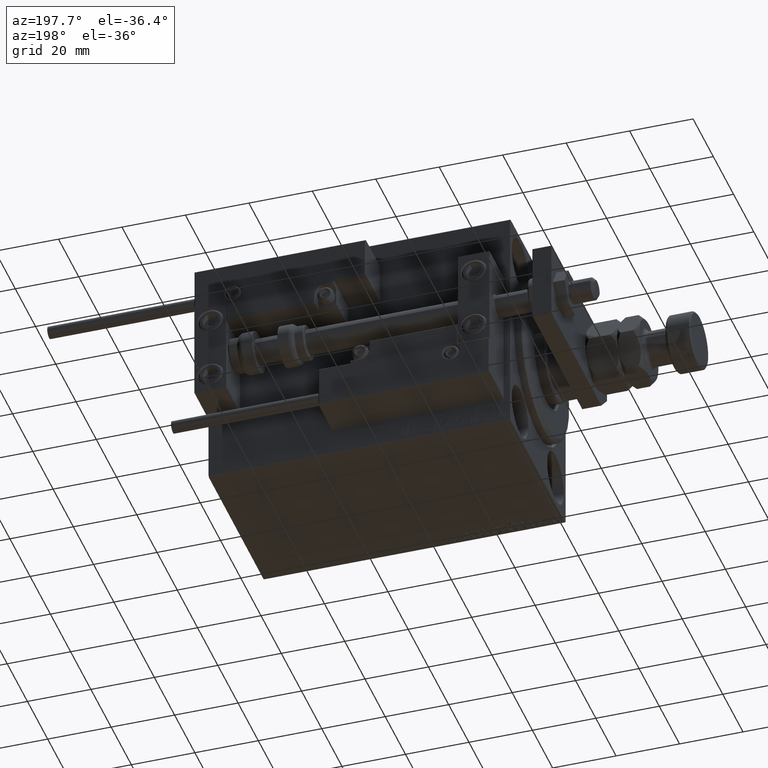
[diagram: clean part render]
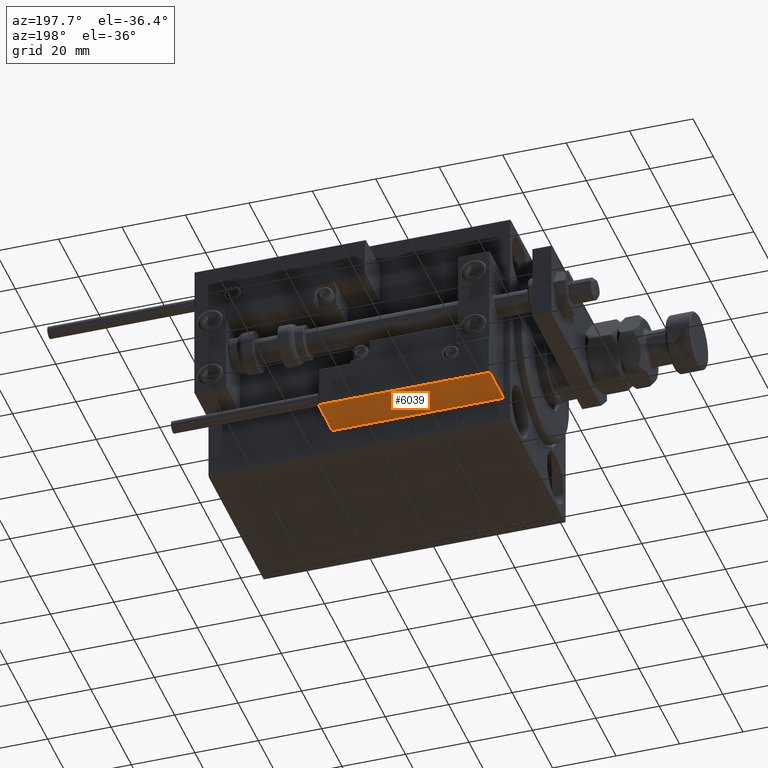
[diagram: same view with one face highlighted and labeled with its STEP entity id]
A machine part, auxiliary view. The second image highlights one B-rep face of the part: STEP entity #6039.
In plain terms, the highlighted planar face has unit normal (0, 0, 1).
Its self-contained STEP definition (entity closure, byte-faithful):
#215 = DIRECTION ( 'NONE',  ( 1.000000000000000000, -6.424901762877063495E-17, 0.000000000000000000 ) ) ;
#2249 = VECTOR ( 'NONE', #32126, 1000.000000000000000 ) ;
#2590 = EDGE_CURVE ( 'NONE', #23461, #10598, #13399, .T. ) ;
#3894 = EDGE_CURVE ( 'NONE', #10669, #23461, #41076, .T. ) ;
#6039 = ADVANCED_FACE ( 'NONE', ( #12185 ), #40621, .F. ) ;
#6110 = AXIS2_PLACEMENT_3D ( 'NONE', #31734, #32782, #215 ) ;
#7370 = CARTESIAN_POINT ( 'NONE',  ( -26.99999999999993605, 20.00000000000002132, 14.00000000000000000 ) ) ;
#8141 = LINE ( 'NONE', #7370, #2249 ) ;
#8249 = CARTESIAN_POINT ( 'NONE',  ( 27.00000000000006395, 20.00000000000001776, 0.000000000000000000 ) ) ;
#10598 = VERTEX_POINT ( 'NONE', #17281 ) ;
#10604 = ORIENTED_EDGE ( 'NONE', *, *, #39637, .F. ) ;
#10669 = VERTEX_POINT ( 'NONE', #40127 ) ;
#12185 = FACE_OUTER_BOUND ( 'NONE', #42997, .T. ) ;
#13399 = LINE ( 'NONE', #29308, #20126 ) ;
#16322 = VECTOR ( 'NONE', #47657, 1000.000000000000000 ) ;
#16812 = CARTESIAN_POINT ( 'NONE',  ( 27.00000000000006395, 20.00000000000001776, 13.70000000000000107 ) ) ;
#17281 = CARTESIAN_POINT ( 'NONE',  ( 27.00000000000006395, 20.00000000000001776, 0.000000000000000000 ) ) ;
#20126 = VECTOR ( 'NONE', #45753, 1000.000000000000000 ) ;
#23461 = VERTEX_POINT ( 'NONE', #51371 ) ;
#23866 = ORIENTED_EDGE ( 'NONE', *, *, #37049, .T. ) ;
#26811 = VECTOR ( 'NONE', #44490, 1000.000000000000000 ) ;
#29308 = CARTESIAN_POINT ( 'NONE',  ( 27.00000000000006395, 20.00000000000001776, 14.00000000000000000 ) ) ;
#31734 = CARTESIAN_POINT ( 'NONE',  ( 27.00000000000006395, 20.00000000000001776, 14.00000000000000000 ) ) ;
#32126 = DIRECTION ( 'NONE',  ( -0.000000000000000000, -0.000000000000000000, -1.000000000000000000 ) ) ;
#32782 = DIRECTION ( 'NONE',  ( -6.424901762877063495E-17, -1.000000000000000000, 0.000000000000000000 ) ) ;
#35364 = LINE ( 'NONE', #8249, #16322 ) ;
#37049 = EDGE_CURVE ( 'NONE', #10598, #50023, #35364, .T. ) ;
#37934 = ORIENTED_EDGE ( 'NONE', *, *, #3894, .T. ) ;
#39637 = EDGE_CURVE ( 'NONE', #10669, #50023, #8141, .T. ) ;
#39690 = CARTESIAN_POINT ( 'NONE',  ( -26.99999999999993605, 20.00000000000002132, 0.000000000000000000 ) ) ;
#40127 = CARTESIAN_POINT ( 'NONE',  ( -26.99999999999993605, 20.00000000000002132, 13.70000000000000107 ) ) ;
#40621 = PLANE ( 'NONE',  #6110 ) ;
#41076 = LINE ( 'NONE', #16812, #26811 ) ;
#42997 = EDGE_LOOP ( 'NONE', ( #10604, #37934, #43439, #23866 ) ) ;
#43439 = ORIENTED_EDGE ( 'NONE', *, *, #2590, .T. ) ;
#44490 = DIRECTION ( 'NONE',  ( 1.000000000000000000, -6.424901762877063495E-17, -0.000000000000000000 ) ) ;
#45753 = DIRECTION ( 'NONE',  ( -0.000000000000000000, -0.000000000000000000, -1.000000000000000000 ) ) ;
#47657 = DIRECTION ( 'NONE',  ( -1.000000000000000000, 6.424901762877062263E-17, 0.000000000000000000 ) ) ;
#50023 = VERTEX_POINT ( 'NONE', #39690 ) ;
#51371 = CARTESIAN_POINT ( 'NONE',  ( 27.00000000000006395, 20.00000000000001776, 13.70000000000000107 ) ) ;